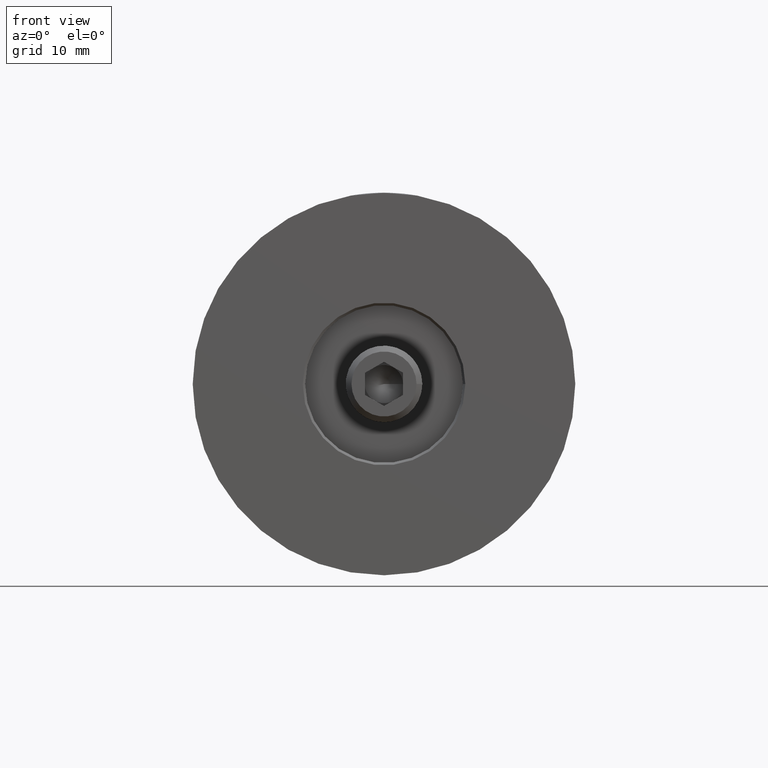
[diagram: clean part render]
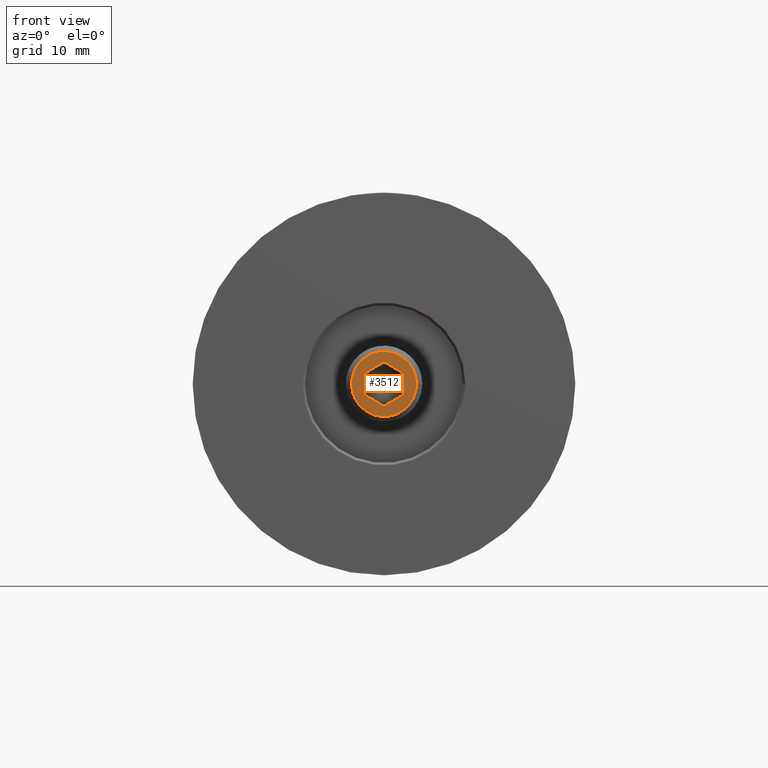
[diagram: same view with one face highlighted and labeled with its STEP entity id]
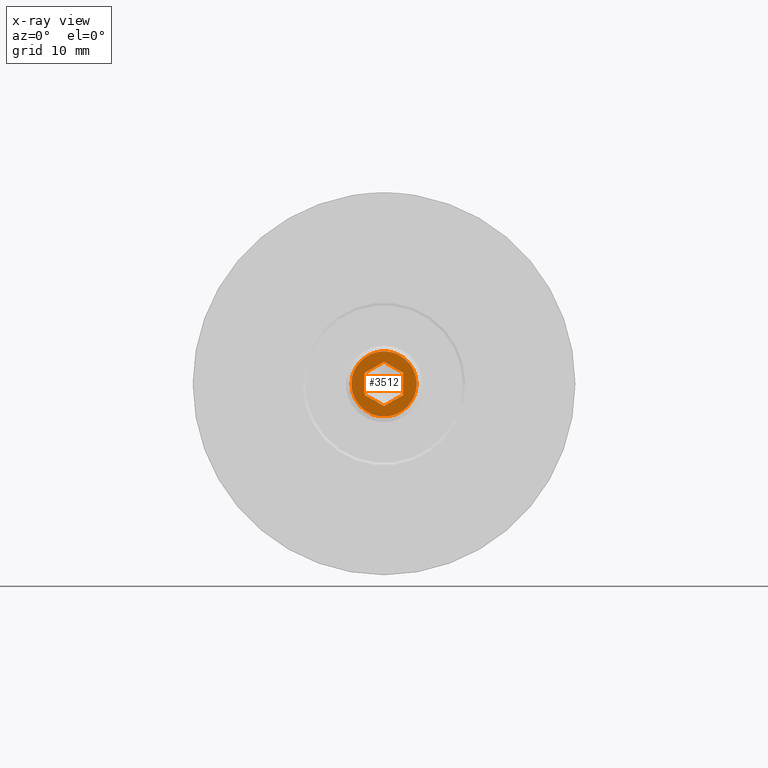
[diagram: x-ray of the same camera — body ghosted, the highlighted face saturated]
A machine part, front view. The second image highlights one B-rep face of the part: STEP entity #3512.
The next image is the same camera in x-ray: the body ghosted, the highlighted face saturated — about 0% of this face is hidden behind the body in this view.
In plain terms, the highlighted planar face has unit normal (-0, -1, 0).
Its self-contained STEP definition (entity closure, byte-faithful):
#22 = DIRECTION ( 'NONE',  ( 0.000000000000000000, 0.000000000000000000, -1.000000000000000000 ) ) ;
#47 = VERTEX_POINT ( 'NONE', #70 ) ;
#70 = CARTESIAN_POINT ( 'NONE',  ( 45.00000000000000000, -1.154700538379252350, -1.999999999999999556 ) ) ;
#289 = ORIENTED_EDGE ( 'NONE', *, *, #10597, .F. ) ;
#475 = LINE ( 'NONE', #4108, #14597 ) ;
#521 = ORIENTED_EDGE ( 'NONE', *, *, #11476, .T. ) ;
#895 = ORIENTED_EDGE ( 'NONE', *, *, #3033, .F. ) ;
#921 = LINE ( 'NONE', #1693, #9241 ) ;
#1461 = CARTESIAN_POINT ( 'NONE',  ( 45.00000000000000000, 1.154700538379252350, -2.000000000000000000 ) ) ;
#1693 = CARTESIAN_POINT ( 'NONE',  ( 45.00000000000000000, -2.309401076758503368, 8.522747686151501168E-16 ) ) ;
#1694 = CARTESIAN_POINT ( 'NONE',  ( 45.00000000000000000, -1.154700538379252350, 2.000000000000000000 ) ) ;
#1881 = PLANE ( 'NONE',  #10511 ) ;
#2112 = VECTOR ( 'NONE', #10530, 1000.000000000000000 ) ;
#2275 = VERTEX_POINT ( 'NONE', #1461 ) ;
#3027 = DIRECTION ( 'NONE',  ( 1.000000000000000000, 0.000000000000000000, 0.000000000000000000 ) ) ;
#3033 = EDGE_CURVE ( 'NONE', #9352, #10043, #6830, .T. ) ;
#3436 = DIRECTION ( 'NONE',  ( 1.000000000000000000, 0.000000000000000000, 0.000000000000000000 ) ) ;
#3512 = ADVANCED_FACE ( 'NONE', ( #9376, #9020 ), #1881, .T. ) ;
#3859 = DIRECTION ( 'NONE',  ( 0.000000000000000000, -0.4999999999999999445, -0.8660254037844385966 ) ) ;
#3969 = VECTOR ( 'NONE', #7866, 1000.000000000000000 ) ;
#4105 = LINE ( 'NONE', #14246, #9894 ) ;
#4108 = CARTESIAN_POINT ( 'NONE',  ( 45.00000000000000000, 2.309401076758503812, -6.008135144191819822E-16 ) ) ;
#4192 = CARTESIAN_POINT ( 'NONE',  ( 45.00000000000000000, 2.309401076758503812, -6.008135144191819822E-16 ) ) ;
#4594 = VERTEX_POINT ( 'NONE', #10373 ) ;
#4934 = DIRECTION ( 'NONE',  ( 0.000000000000000000, 0.4999999999999999445, 0.8660254037844387076 ) ) ;
#5064 = EDGE_LOOP ( 'NONE', ( #521 ) ) ;
#5340 = ORIENTED_EDGE ( 'NONE', *, *, #14615, .F. ) ;
#5363 = EDGE_CURVE ( 'NONE', #11396, #4594, #475, .T. ) ;
#5381 = VECTOR ( 'NONE', #3859, 1000.000000000000114 ) ;
#5506 = ORIENTED_EDGE ( 'NONE', *, *, #6732, .F. ) ;
#5739 = CARTESIAN_POINT ( 'NONE',  ( 45.00000000000000000, 0.000000000000000000, 0.000000000000000000 ) ) ;
#6732 = EDGE_CURVE ( 'NONE', #10043, #47, #921, .T. ) ;
#6830 = LINE ( 'NONE', #1694, #5381 ) ;
#7486 = DIRECTION ( 'NONE',  ( 0.000000000000000000, 0.4999999999999996114, -0.8660254037844388186 ) ) ;
#7861 = ORIENTED_EDGE ( 'NONE', *, *, #5363, .F. ) ;
#7866 = DIRECTION ( 'NONE',  ( 0.000000000000000000, -1.000000000000000000, 0.000000000000000000 ) ) ;
#8369 = CARTESIAN_POINT ( 'NONE',  ( 45.00000000000000000, -2.309401076758503812, 8.673617379884035472E-16 ) ) ;
#8849 = CIRCLE ( 'NONE', #8897, 3.399999999999996358 ) ;
#8897 = AXIS2_PLACEMENT_3D ( 'NONE', #5739, #3436, #22 ) ;
#8948 = CARTESIAN_POINT ( 'NONE',  ( 45.00000000000000000, 0.000000000000000000, 0.000000000000000000 ) ) ;
#9020 = FACE_OUTER_BOUND ( 'NONE', #5064, .T. ) ;
#9241 = VECTOR ( 'NONE', #7486, 1000.000000000000114 ) ;
#9352 = VERTEX_POINT ( 'NONE', #12249 ) ;
#9376 = FACE_BOUND ( 'NONE', #13455, .T. ) ;
#9894 = VECTOR ( 'NONE', #4934, 999.9999999999998863 ) ;
#10043 = VERTEX_POINT ( 'NONE', #8369 ) ;
#10051 = DIRECTION ( 'NONE',  ( 0.000000000000000000, 0.000000000000000000, -1.000000000000000000 ) ) ;
#10233 = LINE ( 'NONE', #10686, #2112 ) ;
#10373 = CARTESIAN_POINT ( 'NONE',  ( 45.00000000000000000, 1.154700538379252128, 2.000000000000000000 ) ) ;
#10511 = AXIS2_PLACEMENT_3D ( 'NONE', #8948, #3027, #10051 ) ;
#10530 = DIRECTION ( 'NONE',  ( 0.000000000000000000, 1.000000000000000000, -1.877893248421447556E-16 ) ) ;
#10597 = EDGE_CURVE ( 'NONE', #4594, #9352, #13201, .T. ) ;
#10686 = CARTESIAN_POINT ( 'NONE',  ( 45.00000000000000000, -1.154700538379252350, -1.999999999999999556 ) ) ;
#11396 = VERTEX_POINT ( 'NONE', #4192 ) ;
#11476 = EDGE_CURVE ( 'NONE', #12595, #12595, #8849, .T. ) ;
#11922 = ORIENTED_EDGE ( 'NONE', *, *, #13838, .F. ) ;
#12217 = DIRECTION ( 'NONE',  ( 0.000000000000000000, -0.4999999999999999445, 0.8660254037844387076 ) ) ;
#12249 = CARTESIAN_POINT ( 'NONE',  ( 45.00000000000000000, -1.154700538379252350, 2.000000000000000000 ) ) ;
#12550 = CARTESIAN_POINT ( 'NONE',  ( 45.00000000000000000, 0.000000000000000000, -3.399999999999996358 ) ) ;
#12595 = VERTEX_POINT ( 'NONE', #12550 ) ;
#13201 = LINE ( 'NONE', #13691, #3969 ) ;
#13455 = EDGE_LOOP ( 'NONE', ( #895, #289, #7861, #11922, #5340, #5506 ) ) ;
#13691 = CARTESIAN_POINT ( 'NONE',  ( 45.00000000000000000, 1.154700538379252128, 2.000000000000000000 ) ) ;
#13838 = EDGE_CURVE ( 'NONE', #2275, #11396, #4105, .T. ) ;
#14246 = CARTESIAN_POINT ( 'NONE',  ( 45.00000000000000000, 1.154700538379252350, -2.000000000000000000 ) ) ;
#14597 = VECTOR ( 'NONE', #12217, 1000.000000000000000 ) ;
#14615 = EDGE_CURVE ( 'NONE', #47, #2275, #10233, .T. ) ;